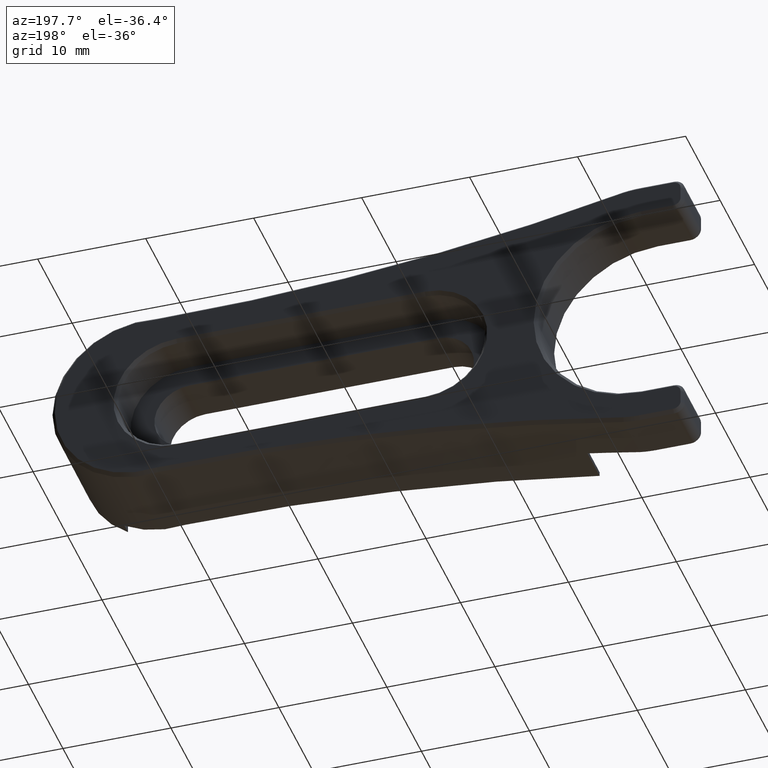
[diagram: clean part render]
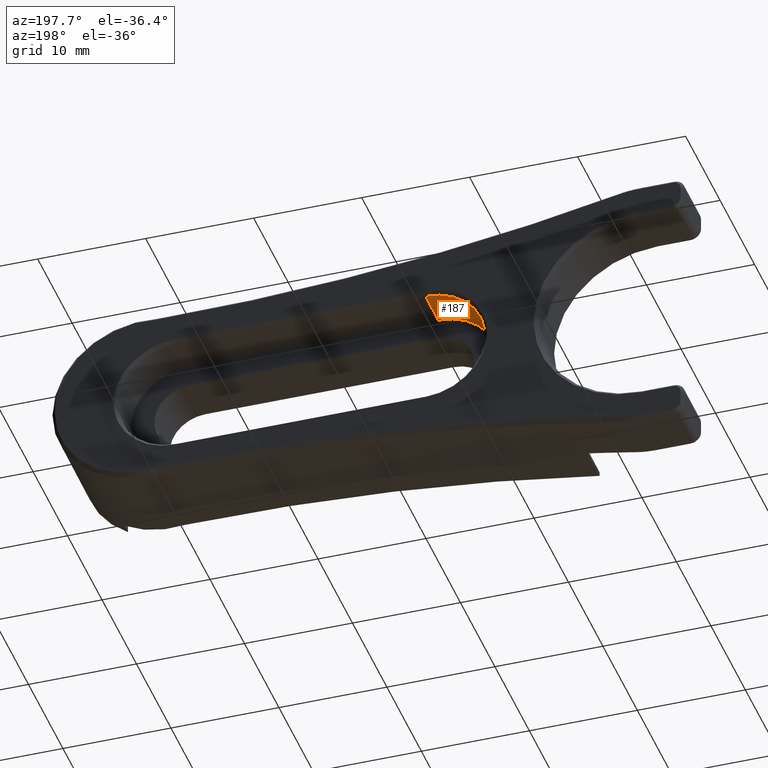
[diagram: same view with one face highlighted and labeled with its STEP entity id]
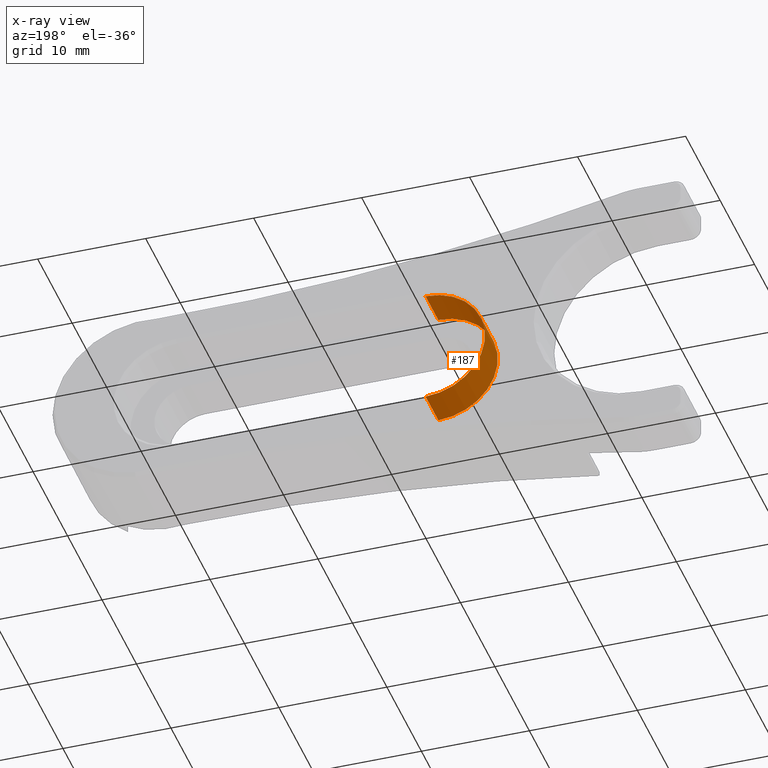
[diagram: x-ray of the same camera — body ghosted, the highlighted face saturated]
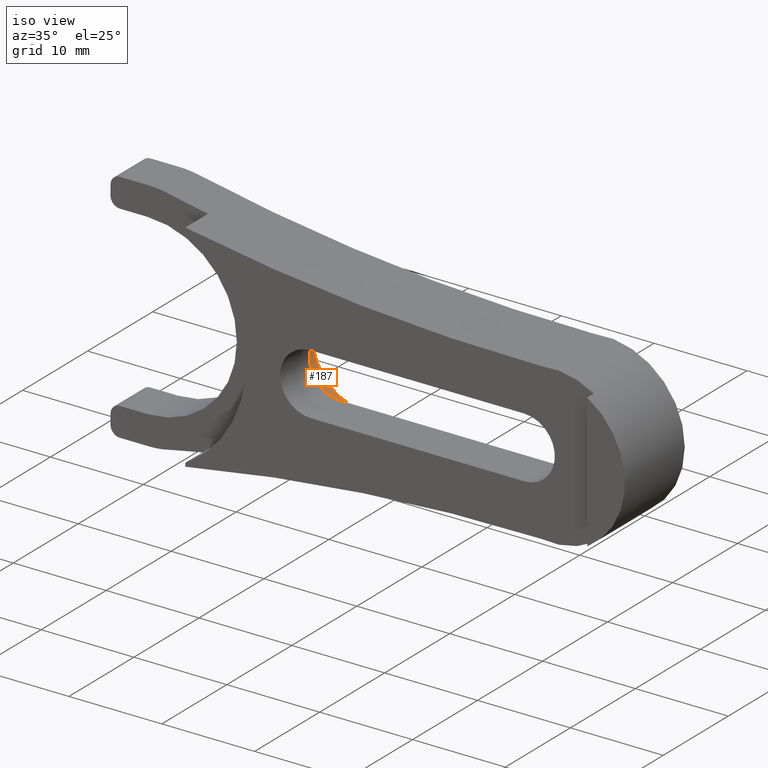
[diagram: same view with one face highlighted and labeled with its STEP entity id]
A machine part, auxiliary view. The second image highlights one B-rep face of the part: STEP entity #187.
The next image is the same camera in x-ray: the body ghosted, the highlighted face saturated — about 0% of this face is hidden behind the body in this view.
A second angle (iso view) of the same face is appended — the face is thin or edge-on in the first view.
In plain terms, the highlighted cylindrical surface (partial cylindrical patch) has radius 5.5 mm, axis along (0, 1, 0).
Its self-contained STEP definition (entity closure, byte-faithful):
#70 = DIRECTION ( 'NONE',  ( 0.000000000000000000, 0.000000000000000000, 1.000000000000000000 ) ) ;
#97 = EDGE_CURVE ( 'NONE', #790, #1500, #998, .T. ) ;
#124 = ORIENTED_EDGE ( 'NONE', *, *, #97, .F. ) ;
#143 = DIRECTION ( 'NONE',  ( 0.000000000000000000, 1.000000000000000000, 0.000000000000000000 ) ) ;
#153 = DIRECTION ( 'NONE',  ( 0.000000000000000000, -1.000000000000000000, -0.000000000000000000 ) ) ;
#185 = DIRECTION ( 'NONE',  ( 0.000000000000000000, 1.000000000000000000, 0.000000000000000000 ) ) ;
#187 = ADVANCED_FACE ( 'NONE', ( #1593 ), #1083, .F. ) ;
#223 = AXIS2_PLACEMENT_3D ( 'NONE', #788, #185, #1061 ) ;
#226 = ORIENTED_EDGE ( 'NONE', *, *, #1595, .T. ) ;
#243 = CARTESIAN_POINT ( 'NONE',  ( -53.09457426940822700, 6.500000000000000888, -21.39062565510760194 ) ) ;
#304 = VECTOR ( 'NONE', #153, 1000.000000000000000 ) ;
#318 = DIRECTION ( 'NONE',  ( 0.000000000000000000, 1.000000000000000000, 0.000000000000000000 ) ) ;
#402 = VERTEX_POINT ( 'NONE', #1368 ) ;
#409 = CARTESIAN_POINT ( 'NONE',  ( -53.09457426940822700, 9.800000000000006040, -26.89062565510761260 ) ) ;
#420 = CARTESIAN_POINT ( 'NONE',  ( -53.09457426940822700, 9.800000000000006040, -32.39062565510761971 ) ) ;
#535 = DIRECTION ( 'NONE',  ( -0.000000000000000000, -1.000000000000000000, -0.000000000000000000 ) ) ;
#788 = CARTESIAN_POINT ( 'NONE',  ( -53.09457426940822700, 6.100000000000000533, -26.89062565510761260 ) ) ;
#789 = DIRECTION ( 'NONE',  ( 0.000000000000000000, 0.000000000000000000, 1.000000000000000000 ) ) ;
#790 = VERTEX_POINT ( 'NONE', #1252 ) ;
#834 = AXIS2_PLACEMENT_3D ( 'NONE', #409, #535, #789 ) ;
#966 = ORIENTED_EDGE ( 'NONE', *, *, #1219, .F. ) ;
#982 = LINE ( 'NONE', #1278, #1100 ) ;
#998 = CIRCLE ( 'NONE', #223, 5.500000000000007994 ) ;
#1024 = AXIS2_PLACEMENT_3D ( 'NONE', #1449, #318, #70 ) ;
#1061 = DIRECTION ( 'NONE',  ( 0.000000000000000000, 0.000000000000000000, 1.000000000000000000 ) ) ;
#1083 = CYLINDRICAL_SURFACE ( 'NONE', #1024, 5.500000000000007994 ) ;
#1100 = VECTOR ( 'NONE', #143, 1000.000000000000000 ) ;
#1201 = CIRCLE ( 'NONE', #834, 5.500000000000007994 ) ;
#1219 = EDGE_CURVE ( 'NONE', #402, #1357, #1201, .T. ) ;
#1252 = CARTESIAN_POINT ( 'NONE',  ( -53.09457426940822700, 6.100000000000000533, -32.39062565510761971 ) ) ;
#1278 = CARTESIAN_POINT ( 'NONE',  ( -53.09457426940822700, 6.500000000000000888, -32.39062565510761971 ) ) ;
#1291 = EDGE_CURVE ( 'NONE', #402, #1500, #1412, .T. ) ;
#1353 = CARTESIAN_POINT ( 'NONE',  ( -53.09457426940822700, 6.100000000000000533, -21.39062565510760194 ) ) ;
#1357 = VERTEX_POINT ( 'NONE', #420 ) ;
#1368 = CARTESIAN_POINT ( 'NONE',  ( -53.09457426940822700, 9.799999999996071409, -21.39062565510602809 ) ) ;
#1412 = LINE ( 'NONE', #243, #304 ) ;
#1449 = CARTESIAN_POINT ( 'NONE',  ( -53.09457426940822700, 6.500000000000000888, -26.89062565510761260 ) ) ;
#1500 = VERTEX_POINT ( 'NONE', #1353 ) ;
#1534 = EDGE_LOOP ( 'NONE', ( #966, #1576, #124, #226 ) ) ;
#1576 = ORIENTED_EDGE ( 'NONE', *, *, #1291, .T. ) ;
#1593 = FACE_OUTER_BOUND ( 'NONE', #1534, .T. ) ;
#1595 = EDGE_CURVE ( 'NONE', #790, #1357, #982, .T. ) ;